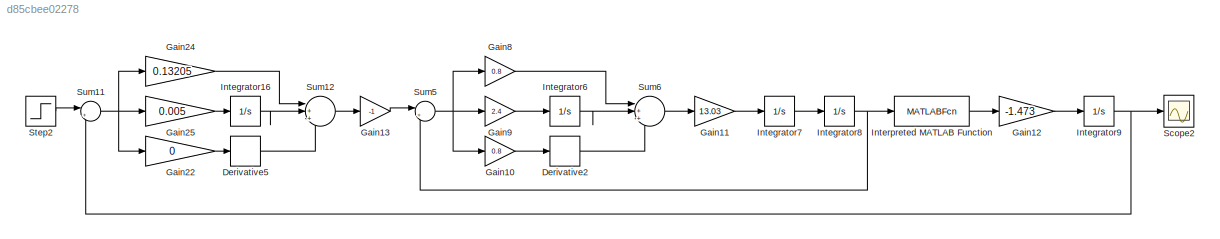
MODEL slx_d85cbee02278
KIND model
CONFIG AbsTol = auto
CONFIG EnableMultiTasking = off
CONFIG FixedStep = auto
CONFIG MaxStep = auto
CONFIG MinStep = auto
CONFIG RelTol = 1e-3
CONFIG SampleTimeConstraint = Unconstrained
CONFIG SolverName = VariableStepAuto
CONFIG StartTime = 0.0
CONFIG StopTime = 20
BLOCK [Derivative] Derivative2
BLOCK [Derivative] Derivative5
BLOCK [Gain] Gain10
  Gain = 0.8
BLOCK [Gain] Gain11
  Gain = 13.03
BLOCK [Gain] Gain12
  Gain = -1.473
BLOCK [Gain] Gain13
  Gain = -1
BLOCK [Gain] Gain22
  Gain = 0
BLOCK [Gain] Gain24
  Gain = 0.13205
BLOCK [Gain] Gain25
  Gain = 0.005
BLOCK [Gain] Gain8
  Gain = 0.8
BLOCK [Gain] Gain9
  Gain = 2.4
BLOCK [Integrator] Integrator16
BLOCK [Integrator] Integrator6
BLOCK [Integrator] Integrator7
BLOCK [Integrator] Integrator8
BLOCK [Integrator] Integrator9
BLOCK [MATLABFcn] Interpreted MATLAB Function
  MATLABFcn = sin(u(1))
BLOCK [Scope] Scope2
  Floating = off
  NumInputPorts = 1
  ScopeSpecificationString = Simulink.scopes.TimeScopeBlockCfg('CurrentConfiguration', extmgr.ConfigurationSet(extmgr.Configuration('Core','General UI',true),extmgr.Configuration('Core','Source UI',true),extmgr.Configuration('Sources','WiredSimulink',true,'DataLoggingVariableName','xuanzhuan','DataLogging',true,'DataLoggingSaveFormat','StructureWithTime'),extmgr.Configuration('Visuals','Time Domain',true,'SerializedDisplays',...<+1500ch>
BLOCK [Step] Step2
  After = 3.14
  SampleTime = 0
BLOCK [Sum] Sum11
  Inputs = |+-
BLOCK [Sum] Sum12
  Inputs = |+++
BLOCK [Sum] Sum5
  Inputs = |+-
BLOCK [Sum] Sum6
  Inputs = |+++
LINE Derivative2:1 -> Sum6:3
LINE Derivative5:1 -> Sum12:3
LINE Gain10:1 -> Derivative2:1
LINE Gain11:1 -> Integrator7:1
LINE Gain12:1 -> Integrator9:1
LINE Gain13:1 -> Sum5:1
LINE Gain22:1 -> Derivative5:1
LINE Gain24:1 -> Sum12:1
LINE Gain25:1 -> Integrator16:1
LINE Gain8:1 -> Sum6:1
LINE Gain9:1 -> Integrator6:1
LINE Integrator16:1 -> Sum12:2
LINE Integrator6:1 -> Sum6:2
LINE Integrator7:1 -> Integrator8:1
NET Integrator8:1 -> Interpreted MATLAB Function:1, Sum5:2
NET Integrator9:1 -> Scope2:1, Sum11:2
LINE Interpreted MATLAB Function:1 -> Gain12:1
LINE Step2:1 -> Sum11:1
NET Sum11:1 -> Gain22:1, Gain24:1, Gain25:1
LINE Sum12:1 -> Gain13:1
NET Sum5:1 -> Gain10:1, Gain8:1, Gain9:1
LINE Sum6:1 -> Gain11:1
note: NET lines group one-source signal fan-out (src -> all destinations, sorted); 1:1 wires keep LINE
